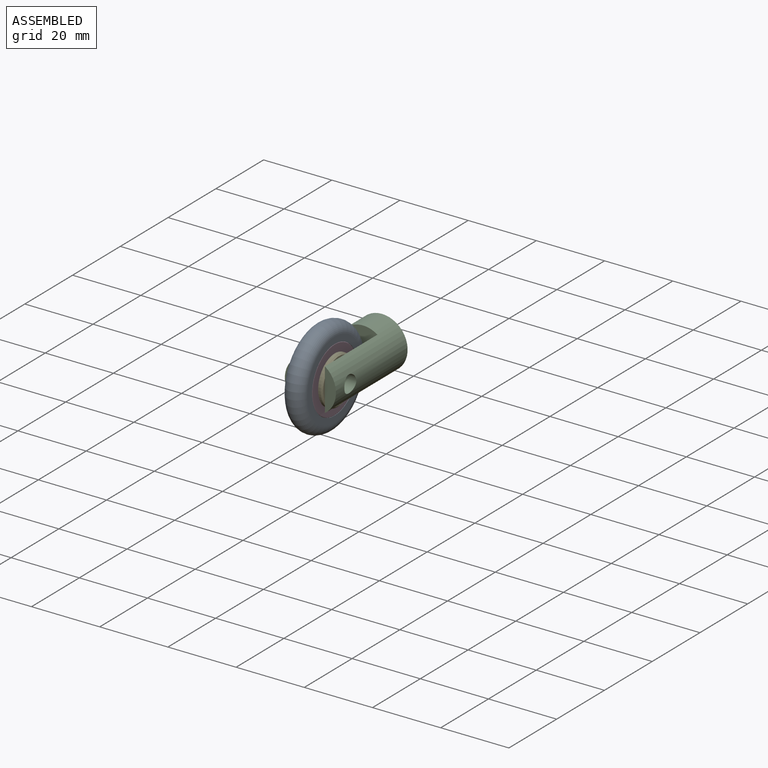
[diagram: assembled view]
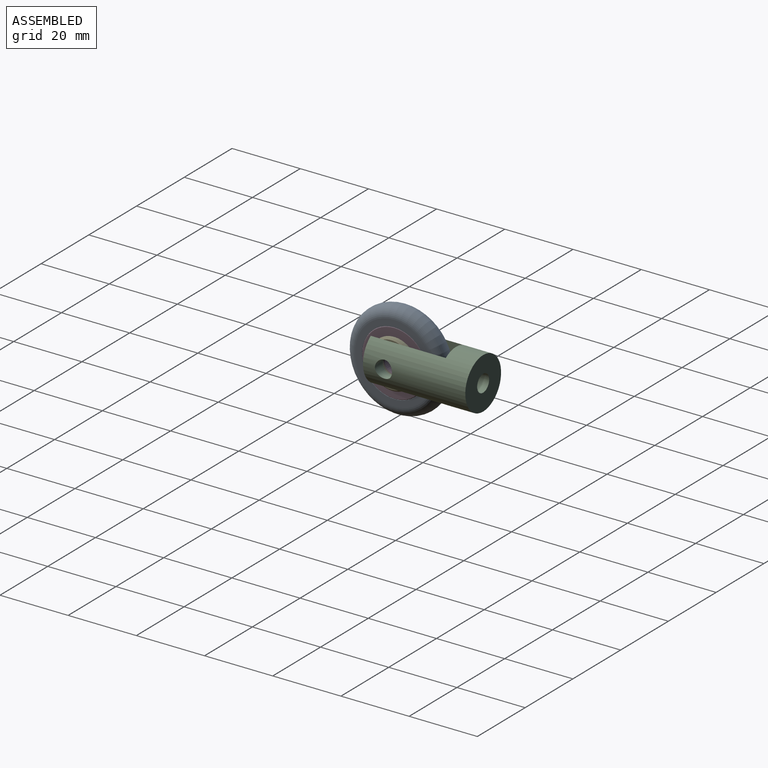
[diagram: assembled view, second angle]
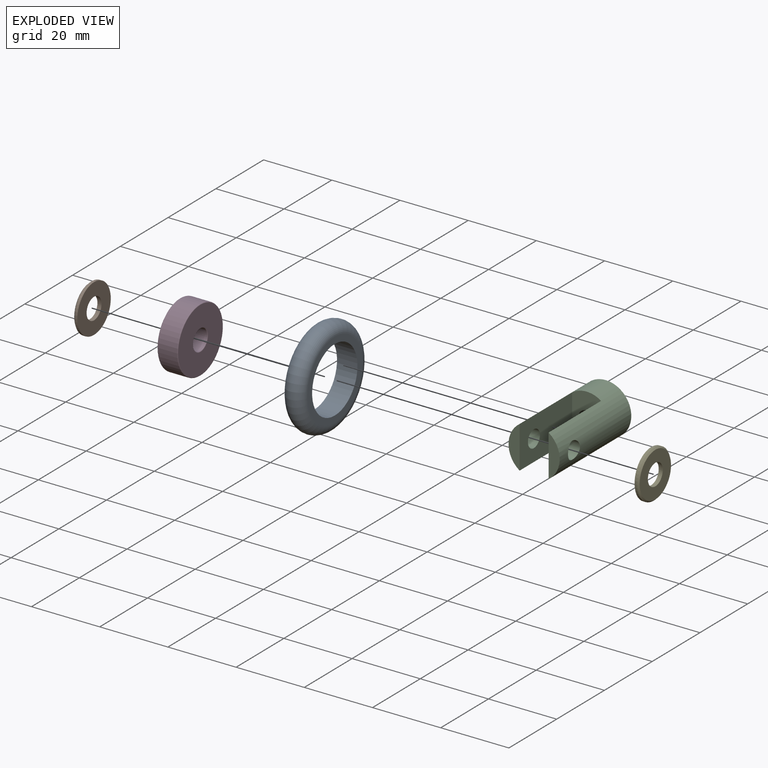
[diagram: exploded view]
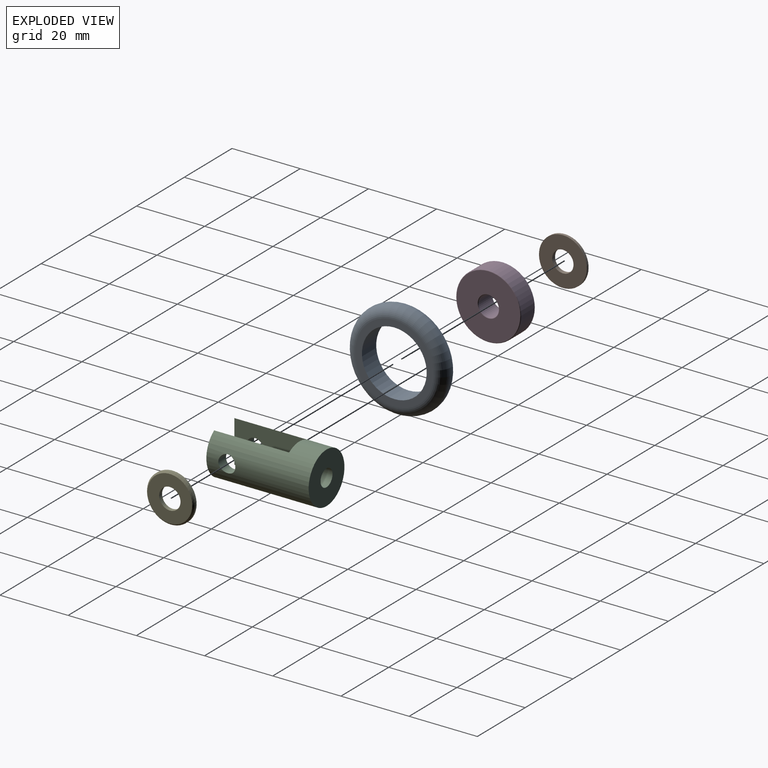
[diagram: exploded view, second angle]
ASSEMBLY  parts=5 mates=4
PART A: 4 faces, bbox 6x31.4x31.4 mm
  f0: torus R=11.5mm, axis (-1,0,0), area 794.1mm2, adj f1,f3
  f1: plane 23x23mm, normal (-1,0,0), area 131.9mm2, adj f0,f2
  f2: cylinder r=9.5mm len=19mm, axis (-1,0,0), area 358.1mm2, adj f1,f3
  f3: plane 23x23mm, normal (1,0,0), area 131.9mm2, adj f0,f2
PART B: 5 faces, bbox 1.2x14x14 mm
  f0: cylinder r=3.12mm len=6.25mm, axis (-1,0,0), area 23.6mm2, adj f3,f4
  f1: cone r=6.79mm half-angle=45deg, axis (1,0,0), area 25.6mm2, adj f2,f4
  f2: cylinder r=7mm len=14mm, axis (-1,0,0), area 34.1mm2, adj f1,f3
  f3: plane 14x14mm, normal (1,0,0), area 123.3mm2, adj f0,f2
  f4: plane 13.15x13.15mm, normal (-1,0,0), area 105.2mm2, adj f0,f1
PART C: 10 faces, bbox 15x30x15 mm
  f0: cylinder r=7.5mm len=30mm, axis (0,1,0), area 976.2mm2, adj f1,f2,f3,f5,f6,f7,f8,f9
  f1: plane 12.36x3.25mm, normal (0,-1,0), area 28.2mm2, adj f0,f6
  f2: plane 12.36x3.25mm, normal (0,-1,0), area 28.2mm2, adj f0,f5
  f3: plane 15x15mm, normal (0,1,0), area 157.1mm2, adj f0,f4
  f4: cylinder r=2.5mm len=8mm, axis (0,1,0), area 125.7mm2, adj f3,f7
  f5: plane 22x12.36mm, normal (-1,0,0), area 252.3mm2, adj f0,f2,f7,f9
  f6: plane 22x12.36mm, normal (1,0,0), area 252.3mm2, adj f0,f1,f7,f8
  f7: plane 15x8.5mm, normal (0,-1,0), area 100.7mm2, adj f0,f4,f5,f6
  f8: cylinder r=2.5mm len=5mm, axis (1,0,0), area 47.7mm2, adj f0,f6
  f9: cylinder r=2.5mm len=5mm, axis (1,0,0), area 47.7mm2, adj f0,f5
PART D: 28 faces, bbox 6x20.6x20.6 mm
  f0: torus R=3.19mm, axis (1,0,0), area 5.8mm2, adj f1,f6
  f1: cylinder r=3mm len=6mm, axis (1,0,0), area 105.9mm2, adj f0,f2
  f2: torus R=3.19mm, axis (1,0,0), area 5.8mm2, adj f1,f7
  f3: torus R=9.31mm, axis (1,0,0), area 17.7mm2, adj f4,f7
  f4: cylinder r=9.5mm len=19mm, axis (1,0,0), area 335.5mm2, adj f3,f5
  f5: torus R=9.31mm, axis (1,0,0), area 17.7mm2, adj f4,f6
  f6: plane 18.62x18.62mm, normal (-1,0,0), area 240.3mm2, adj f0,f5
  f7: plane 18.62x18.62mm, normal (1,0,0), area 240.3mm2, adj f2,f3
  f8: cylinder r=4.95mm len=9.9mm, axis (1,0,0), area 6.8mm2, adj f10,f11
  f9: cylinder r=7.55mm len=15.1mm, axis (1,0,0), area 10.4mm2, adj f10,f11
  f10: plane 15.1x15.1mm, normal (-1,0,0), area 102.1mm2, adj f8,f9
  f11: plane 15.1x15.1mm, normal (1,0,0), area 102.1mm2, adj f8,f9
  f12: cylinder r=6.14mm len=12.28mm, axis (1,0,0), area 68.1mm2, adj f18,f22
  f13: cylinder r=6.36mm len=12.72mm, axis (1,0,0), area 70.6mm2, adj f20,f22
  f14: cylinder r=6.14mm len=12.28mm, axis (1,0,0), area 68.1mm2, adj f19,f23
  f15: cylinder r=6.36mm len=12.72mm, axis (1,0,0), area 70.6mm2, adj f21,f23
  f16: cylinder r=5.17mm len=10.33mm, axis (1,0,0), area 7.1mm2, adj f18,f19
  f17: cylinder r=7.33mm len=14.67mm, axis (1,0,0), area 10.1mm2, adj f20,f21
  f18: plane 12.28x12.28mm, normal (-1,0,0), area 34.6mm2, adj f12,f16
  f19: plane 12.28x12.28mm, normal (1,0,0), area 34.6mm2, adj f14,f16
  f20: plane 14.67x14.67mm, normal (-1,0,0), area 41.9mm2, adj f13,f17
  f21: plane 14.67x14.67mm, normal (1,0,0), area 41.9mm2, adj f15,f17
  f22: plane 12.72x12.72mm, normal (-1,0,0), area 8.6mm2, adj f12,f13
  f23: plane 12.72x12.72mm, normal (1,0,0), area 8.6mm2, adj f14,f15
  f24: cylinder r=4.95mm len=9.9mm, axis (1,0,0), area 6.8mm2, adj f26,f27
  f25: cylinder r=7.55mm len=15.1mm, axis (1,0,0), area 10.4mm2, adj f26,f27
  f26: plane 15.1x15.1mm, normal (-1,0,0), area 102.1mm2, adj f24,f25
  f27: plane 15.1x15.1mm, normal (1,0,0), area 102.1mm2, adj f24,f25
PART E: same geometry as B
PLACE A t=(-1.58,0.72,-0.16)mm
PLACE B t=(-2.78,0.72,-0.16)mm
PLACE C t=(1.47,24.72,-0.16)mm
PLACE D t=(-1.58,0.72,-0.16)mm
PLACE E rot(axis=(0,0,1),180deg) t=(5.62,0.72,-0.16)mm
MATE cylindrical B.f0 <-> D.f0  axis (1,0,0) through (-1.58,0.72,-0.16)mm
MATE cylindrical A.f0 <-> D.f0  axis (-1,0,0) through (1.42,0.72,-0.16)mm
MATE cylindrical E.f0 <-> D.f0  axis (-1,0,0) through (4.42,0.72,-0.16)mm
MATE cylindrical C.f8 <-> B.f0  axis (1,0,0) through (-2.78,0.72,-0.16)mm
